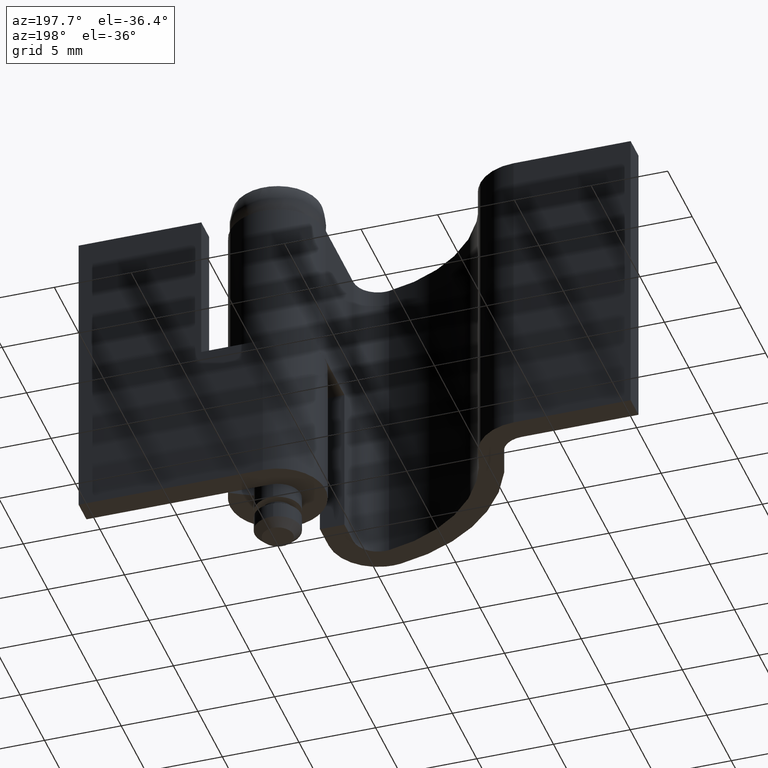
[diagram: clean part render]
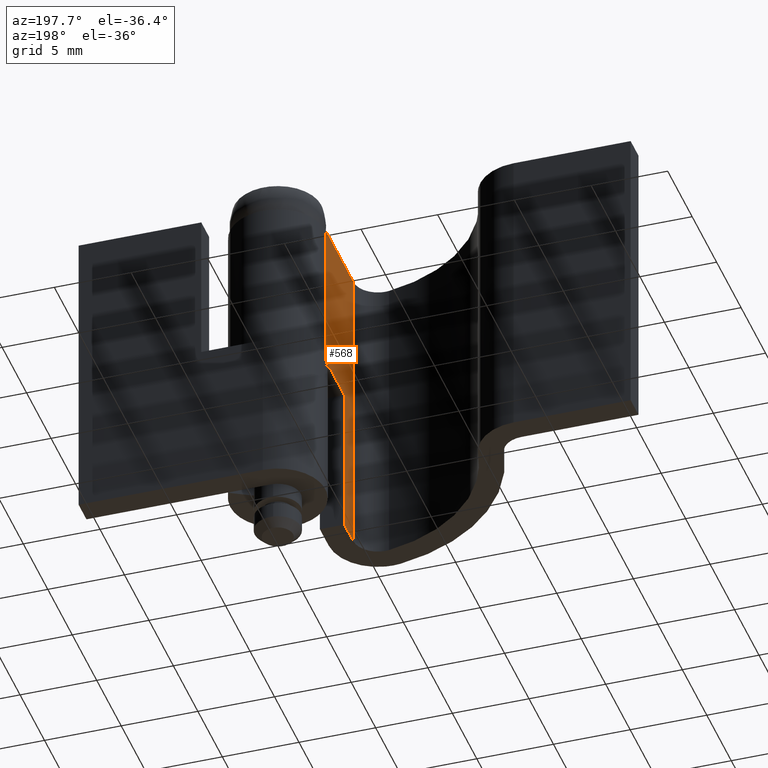
[diagram: same view with one face highlighted and labeled with its STEP entity id]
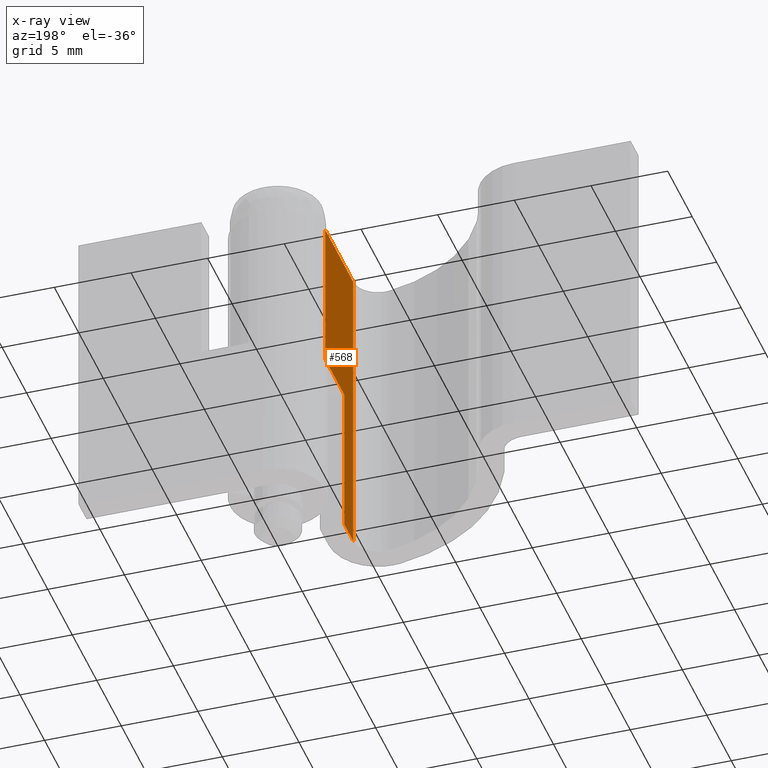
[diagram: x-ray of the same camera — body ghosted, the highlighted face saturated]
A machine part, auxiliary view. The second image highlights one B-rep face of the part: STEP entity #568.
The next image is the same camera in x-ray: the body ghosted, the highlighted face saturated — about 0% of this face is hidden behind the body in this view.
In plain terms, the highlighted face is a freeform B-spline surface patch.
Its self-contained STEP definition (entity closure, byte-faithful):
#51=CARTESIAN_POINT('',(-3.099999000000000,-3.899994000000000,13.0));
#52=VERTEX_POINT('',#51);
#65=CARTESIAN_POINT('',(-3.099999000000040,-3.899994000000000,3.0));
#66=VERTEX_POINT('',#65);
#72=CARTESIAN_POINT('',(-3.099999000000000,-3.899994000000000,13.0));
#73=CARTESIAN_POINT('',(-3.099999000000040,-3.899994000000000,3.0));
#74=QUASI_UNIFORM_CURVE('',1,(#72,#73),.UNSPECIFIED.,.F.,.U.);
#75=EDGE_CURVE('',#52,#66,#74,.T.);
#114=CARTESIAN_POINT('',(-3.099999000000040,0.0,13.0));
#115=VERTEX_POINT('',#114);
#116=CARTESIAN_POINT('',(-3.099999000000040,0.0,13.0));
#117=CARTESIAN_POINT('',(-3.099999000000000,-3.899994000000000,13.0));
#118=QUASI_UNIFORM_CURVE('',1,(#116,#117),.UNSPECIFIED.,.F.,.U.);
#119=EDGE_CURVE('',#115,#52,#118,.T.);
#260=CARTESIAN_POINT('',(-3.099999000000040,0.0,23.0));
#261=VERTEX_POINT('',#260);
#281=CARTESIAN_POINT('',(-3.099999000000040,-5.702556821337891,23.0));
#282=VERTEX_POINT('',#281);
#283=CARTESIAN_POINT('',(-3.099999000000040,0.0,23.0));
#284=CARTESIAN_POINT('',(-3.099999000000040,-5.702556821337891,23.0));
#285=QUASI_UNIFORM_CURVE('',1,(#283,#284),.UNSPECIFIED.,.F.,.U.);
#286=EDGE_CURVE('',#261,#282,#285,.T.);
#446=CARTESIAN_POINT('',(-3.099999000000040,-5.702556821337891,3.0));
#447=VERTEX_POINT('',#446);
#463=CARTESIAN_POINT('',(-3.099999000000040,-3.899994000000000,3.0));
#464=CARTESIAN_POINT('',(-3.099999000000040,-5.702556821337891,3.0));
#465=QUASI_UNIFORM_CURVE('',1,(#463,#464),.UNSPECIFIED.,.F.,.U.);
#466=EDGE_CURVE('',#66,#447,#465,.T.);
#541=CARTESIAN_POINT('',(-3.099999000000040,-5.702556821337891,3.0));
#542=CARTESIAN_POINT('',(-3.099999000000040,-5.702556821337891,23.0));
#543=QUASI_UNIFORM_CURVE('',1,(#541,#542),.UNSPECIFIED.,.F.,.U.);
#544=EDGE_CURVE('',#447,#282,#543,.T.);
#551=CARTESIAN_POINT('',(-3.099999000000040,0.284842681799628,23.998999961236120));
#552=CARTESIAN_POINT('',(-3.099999000000040,-5.987399248213364,23.998999961236120));
#553=CARTESIAN_POINT('',(-3.099999000000040,0.284842681799628,2.000999502322078));
#554=CARTESIAN_POINT('',(-3.099999000000040,-5.987399248213364,2.000999502322078));
#555=B_SPLINE_SURFACE_WITH_KNOTS('',1,1,((#551,#553),(#552,#554)),.UNSPECIFIED.,.F.,.F.,.U.,(2,2),(2,2),(0.0,6.272241930012992),(0.0,21.998000458914049),.UNSPECIFIED.);
#556=ORIENTED_EDGE('',*,*,#75,.T.);
#557=ORIENTED_EDGE('',*,*,#466,.T.);
#558=ORIENTED_EDGE('',*,*,#544,.T.);
#559=ORIENTED_EDGE('',*,*,#286,.F.);
#560=CARTESIAN_POINT('',(-3.099999000000040,0.0,13.0));
#561=CARTESIAN_POINT('',(-3.099999000000040,0.0,23.0));
#562=QUASI_UNIFORM_CURVE('',1,(#560,#561),.UNSPECIFIED.,.F.,.U.);
#563=EDGE_CURVE('',#115,#261,#562,.T.);
#564=ORIENTED_EDGE('',*,*,#563,.F.);
#565=ORIENTED_EDGE('',*,*,#119,.T.);
#566=EDGE_LOOP('',(#556,#557,#558,#559,#564,#565));
#567=FACE_OUTER_BOUND('',#566,.T.);
#568=ADVANCED_FACE('',(#567),#555,.F.);